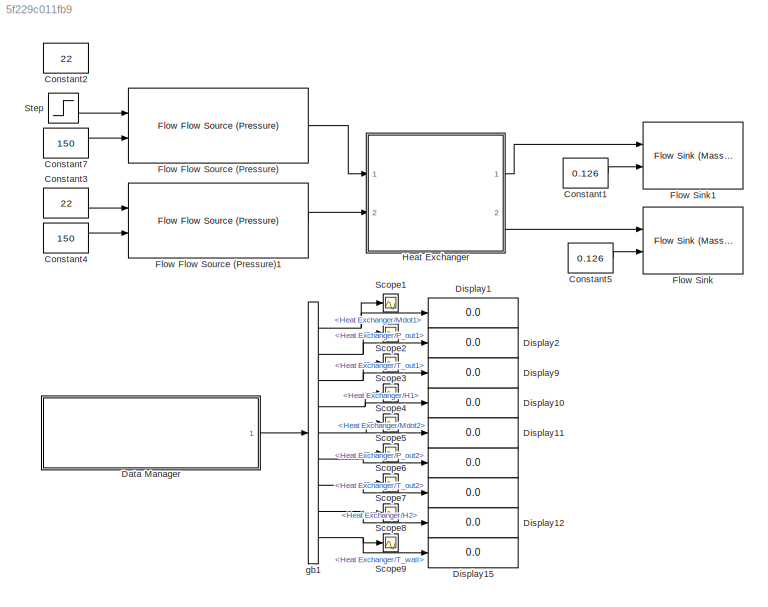
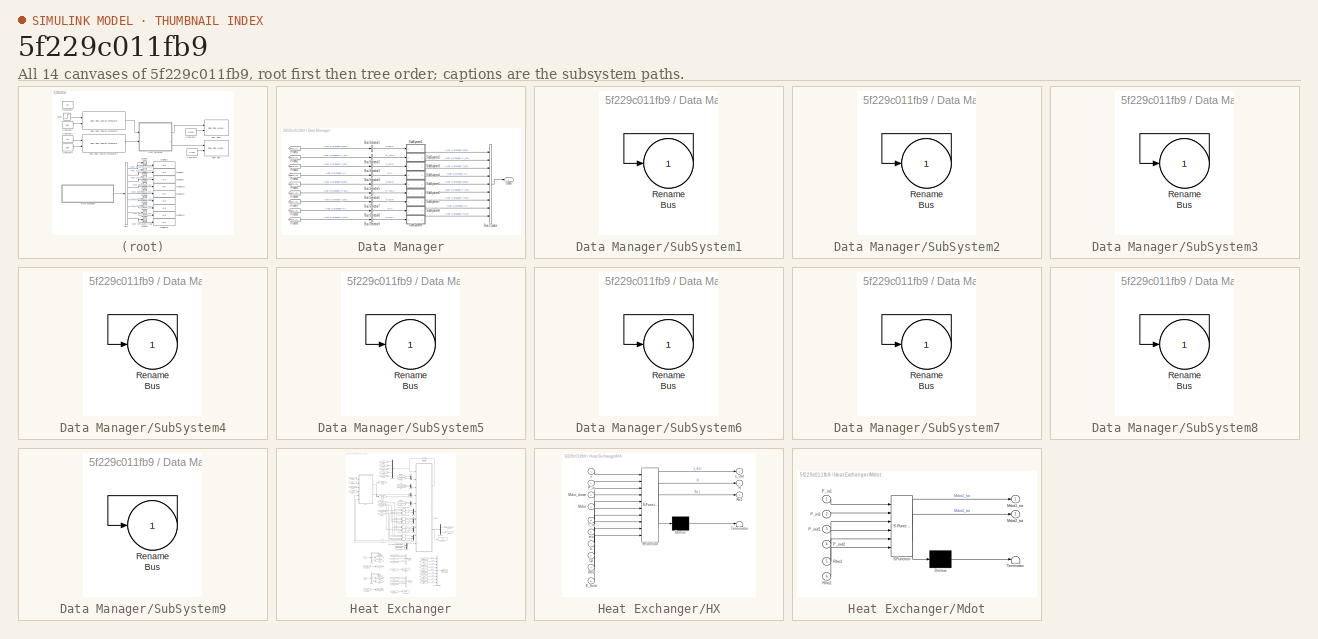
[diagram: thumbnail index - all 14 canvases of the model, root first then tree order]
MODEL slx_5f229c011fb9
KIND model
BLOCK [Display]   
  Decimation = 1
  Ports = [1]
BLOCK [Display]    
  Decimation = 1
  Ports = [1]
BLOCK [Constant] Constant1
  Value = 0.126
BLOCK [Constant] Constant2
  Value = 22
BLOCK [Constant] Constant3
  Value = 22
BLOCK [Constant] Constant4
  Value = 150
BLOCK [Constant] Constant5
  Value = 0.126
BLOCK [Constant] Constant7
  Value = 150
BLOCK [SubSystem] Data Manager
  AncestorBlock = DAEMOT_Lib/Support Functions/Data Manager
  OpenFcn = data_manager
  Ports = [0, 1]
  RequestExecContextInheritance = off
  UserDataPersistent = on
BLOCK [BusCreator] Data Manager/Bus Creator
  DisplayOption = bar
  Inputs = 9
  Ports = [9, 1]
BLOCK [BusSelector] Data Manager/Bus Selector1
  OutputSignals = Mdot1
  Ports = [1, 1]
BLOCK [BusSelector] Data Manager/Bus Selector2
  OutputSignals = P_out1
  Ports = [1, 1]
BLOCK [BusSelector] Data Manager/Bus Selector3
  OutputSignals = T_out1
  Ports = [1, 1]
BLOCK [BusSelector] Data Manager/Bus Selector4
  OutputSignals = H1
  Ports = [1, 1]
BLOCK [BusSelector] Data Manager/Bus Selector5
  OutputSignals = Mdot2
  Ports = [1, 1]
BLOCK [BusSelector] Data Manager/Bus Selector6
  OutputSignals = P_out2
  Ports = [1, 1]
BLOCK [BusSelector] Data Manager/Bus Selector7
  OutputSignals = T_out2
  Ports = [1, 1]
BLOCK [BusSelector] Data Manager/Bus Selector8
  OutputSignals = H2
  Ports = [1, 1]
BLOCK [BusSelector] Data Manager/Bus Selector9
  OutputSignals = T_wall
  Ports = [1, 1]
BLOCK [Outport] Data Manager/Data
  IconDisplay = Port number
BLOCK [From] Data Manager/From1
  GotoTag = gdata_L2L_HX_testHeatExchangerdata_sink1
  TagVisibility = global
  UserDataPersistent = on
BLOCK [From] Data Manager/From2
  GotoTag = gdata_L2L_HX_testHeatExchangerdata_sink1
  TagVisibility = global
  UserDataPersistent = on
BLOCK [From] Data Manager/From3
  GotoTag = gdata_L2L_HX_testHeatExchangerdata_sink1
  TagVisibility = global
  UserDataPersistent = on
BLOCK [From] Data Manager/From4
  GotoTag = gdata_L2L_HX_testHeatExchangerdata_sink1
  TagVisibility = global
  UserDataPersistent = on
BLOCK [From] Data Manager/From5
  GotoTag = gdata_L2L_HX_testHeatExchangerdata_sink1
  TagVisibility = global
  UserDataPersistent = on
BLOCK [From] Data Manager/From6
  GotoTag = gdata_L2L_HX_testHeatExchangerdata_sink1
  TagVisibility = global
  UserDataPersistent = on
BLOCK [From] Data Manager/From7
  GotoTag = gdata_L2L_HX_testHeatExchangerdata_sink1
  TagVisibility = global
  UserDataPersistent = on
BLOCK [From] Data Manager/From8
  GotoTag = gdata_L2L_HX_testHeatExchangerdata_sink1
  TagVisibility = global
  UserDataPersistent = on
BLOCK [From] Data Manager/From9
  GotoTag = gdata_L2L_HX_testHeatExchangerdata_sink1
  TagVisibility = global
  UserDataPersistent = on
BLOCK [SubSystem] Data Manager/SubSystem1
  Ports = [1, 1]
  RequestExecContextInheritance = off
BLOCK [Outport] Data Manager/SubSystem1/Bus
  IconDisplay = Port number
BLOCK [Inport] Data Manager/SubSystem1/Rename
  IconDisplay = Port number
BLOCK [SubSystem] Data Manager/SubSystem2
  Ports = [1, 1]
  RequestExecContextInheritance = off
BLOCK [Outport] Data Manager/SubSystem2/Bus
  IconDisplay = Port number
BLOCK [Inport] Data Manager/SubSystem2/Rename
  IconDisplay = Port number
BLOCK [SubSystem] Data Manager/SubSystem3
  Ports = [1, 1]
  RequestExecContextInheritance = off
BLOCK [Outport] Data Manager/SubSystem3/Bus
  IconDisplay = Port number
BLOCK [Inport] Data Manager/SubSystem3/Rename
  IconDisplay = Port number
BLOCK [SubSystem] Data Manager/SubSystem4
  Ports = [1, 1]
  RequestExecContextInheritance = off
BLOCK [Outport] Data Manager/SubSystem4/Bus
  IconDisplay = Port number
BLOCK [Inport] Data Manager/SubSystem4/Rename
  IconDisplay = Port number
BLOCK [SubSystem] Data Manager/SubSystem5
  Ports = [1, 1]
  RequestExecContextInheritance = off
BLOCK [Outport] Data Manager/SubSystem5/Bus
  IconDisplay = Port number
BLOCK [Inport] Data Manager/SubSystem5/Rename
  IconDisplay = Port number
BLOCK [SubSystem] Data Manager/SubSystem6
  Ports = [1, 1]
  RequestExecContextInheritance = off
BLOCK [Outport] Data Manager/SubSystem6/Bus
  IconDisplay = Port number
BLOCK [Inport] Data Manager/SubSystem6/Rename
  IconDisplay = Port number
BLOCK [SubSystem] Data Manager/SubSystem7
  Ports = [1, 1]
  RequestExecContextInheritance = off
BLOCK [Outport] Data Manager/SubSystem7/Bus
  IconDisplay = Port number
BLOCK [Inport] Data Manager/SubSystem7/Rename
  IconDisplay = Port number
BLOCK [SubSystem] Data Manager/SubSystem8
  Ports = [1, 1]
  RequestExecContextInheritance = off
BLOCK [Outport] Data Manager/SubSystem8/Bus
  IconDisplay = Port number
BLOCK [Inport] Data Manager/SubSystem8/Rename
  IconDisplay = Port number
BLOCK [SubSystem] Data Manager/SubSystem9
  Ports = [1, 1]
  RequestExecContextInheritance = off
BLOCK [Outport] Data Manager/SubSystem9/Bus
  IconDisplay = Port number
BLOCK [Inport] Data Manager/SubSystem9/Rename
  IconDisplay = Port number
BLOCK [Display] Display1
  Decimation = 1
  Ports = [1]
BLOCK [Display] Display10
  Decimation = 1
  Ports = [1]
BLOCK [Display] Display11
  Decimation = 1
  Ports = [1]
BLOCK [Display] Display12
  Decimation = 1
  Ports = [1]
BLOCK [Display] Display15
  Decimation = 1
  Ports = [1]
BLOCK [Display] Display2
  Decimation = 1
  Ports = [1]
BLOCK [Display] Display9
  Decimation = 1
  Ports = [1]
BLOCK [Reference] Flow Flow Source (Pressure)  REF=DAEMOT_Lib/Components/Flow Flow Source (Pressure)
  M = 0
  M_ext = on
  P = 0
  P_ext = on
  Ports = [2, 1]
  SourceBlock = DAEMOT_Lib/Components/Flow Flow Source (Pressure)
  SourceType = Flow Source (Pressure)
  T = 0
  T_ext = on
BLOCK [Reference] Flow Flow Source (Pressure)1  REF=DAEMOT_Lib/Components/Flow Flow Source (Pressure)
  M = 0
  M_ext = on
  P = 0
  P_ext = on
  Ports = [2, 1]
  SourceBlock = DAEMOT_Lib/Components/Flow Flow Source (Pressure)
  SourceType = Flow Source (Pressure)
  T = 0
  T_ext = on
BLOCK [Reference] Flow Sink  REF=DAEMOT_Lib/Components/Flow Sink (Mass Flow Rate)
  M = 0
  M_ext = on
  P = 0
  P_ext = on
  Ports = [2]
  SourceBlock = DAEMOT_Lib/Components/Flow Sink (Mass Flow Rate)
  SourceType = Flow Sink (Mass Flow Rate)
  T = 0
  T_ext = on
BLOCK [Reference] Flow Sink1  REF=DAEMOT_Lib/Components/Flow Sink (Mass Flow Rate)
  M = 0
  M_ext = on
  P = 0
  P_ext = on
  Ports = [2]
  SourceBlock = DAEMOT_Lib/Components/Flow Sink (Mass Flow Rate)
  SourceType = Flow Sink (Mass Flow Rate)
  T = 0
  T_ext = on
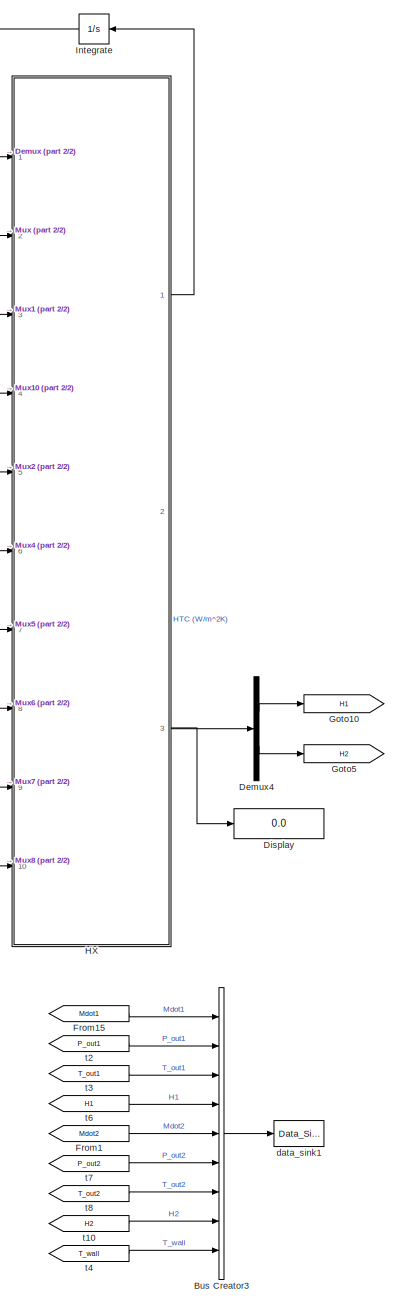
[diagram: Heat Exchanger - part 1/2, right side, full height]
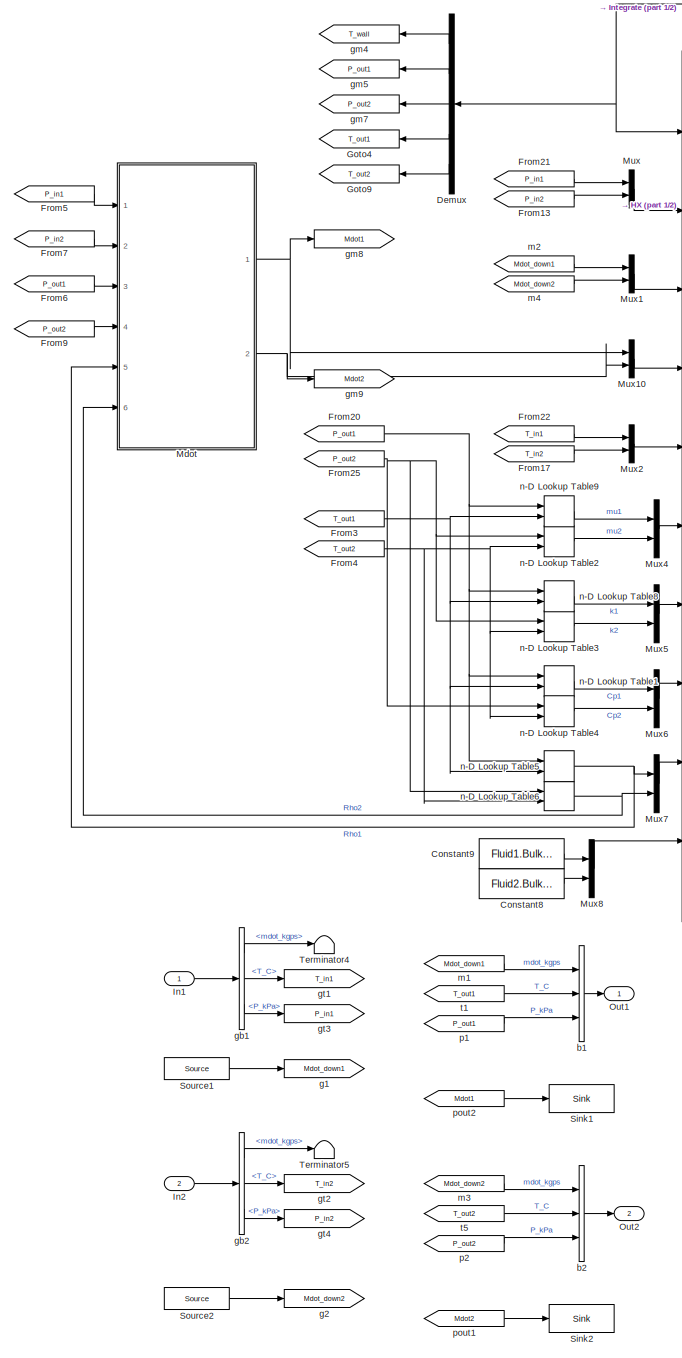
[diagram: Heat Exchanger - part 2/2, left side, full height]
BLOCK [SubSystem] Heat Exchanger
  AncestorBlock = DAEMOT_Lib/Components/Heat Exchanger
  OpenFcn = load('Fluids.mat');\nSet_Fluid_Popup_Names( Fluid )
  Ports = [2, 2]
  RequestExecContextInheritance = off
BLOCK [BusCreator] Heat Exchanger/Bus Creator3
  DisplayOption = bar
  Inputs = 9
  Ports = [9, 1]
BLOCK [Constant] Heat Exchanger/Constant8
  Value = Fluid2.Bulk_Mod
BLOCK [Constant] Heat Exchanger/Constant9
  Value = Fluid1.Bulk_Mod
BLOCK [Demux] Heat Exchanger/Demux
  DisplayOption = bar
  Outputs = 5
  Ports = [1, 5]
BLOCK [Demux] Heat Exchanger/Demux4
  DisplayOption = bar
  Outputs = 2
  Ports = [1, 2]
BLOCK [Display] Heat Exchanger/Display
  Decimation = 1
  Ports = [1]
BLOCK [From] Heat Exchanger/From1
  CloseFcn = tagdialog Close
  GotoTag = Mdot2
BLOCK [From] Heat Exchanger/From13
  CloseFcn = tagdialog Close
  GotoTag = P_in2
BLOCK [From] Heat Exchanger/From15
  CloseFcn = tagdialog Close
  GotoTag = Mdot1
BLOCK [From] Heat Exchanger/From17
  CloseFcn = tagdialog Close
  GotoTag = T_in2
BLOCK [From] Heat Exchanger/From20
  CloseFcn = tagdialog Close
  GotoTag = P_out1
BLOCK [From] Heat Exchanger/From21
  CloseFcn = tagdialog Close
  GotoTag = P_in1
BLOCK [From] Heat Exchanger/From22
  CloseFcn = tagdialog Close
  GotoTag = T_in1
BLOCK [From] Heat Exchanger/From25
  CloseFcn = tagdialog Close
  GotoTag = P_out2
BLOCK [From] Heat Exchanger/From3
  CloseFcn = tagdialog Close
  GotoTag = T_out1
BLOCK [From] Heat Exchanger/From4
  CloseFcn = tagdialog Close
  GotoTag = T_out2
BLOCK [From] Heat Exchanger/From5
  CloseFcn = tagdialog Close
  GotoTag = P_in1
BLOCK [From] Heat Exchanger/From6
  CloseFcn = tagdialog Close
  GotoTag = P_out1
BLOCK [From] Heat Exchanger/From7
  CloseFcn = tagdialog Close
  GotoTag = P_in2
BLOCK [From] Heat Exchanger/From9
  CloseFcn = tagdialog Close
  GotoTag = P_out2
BLOCK [Goto] Heat Exchanger/Goto10
  GotoTag = H1
BLOCK [Goto] Heat Exchanger/Goto4
  GotoTag = T_out1
BLOCK [Goto] Heat Exchanger/Goto5
  GotoTag = H2
BLOCK [Goto] Heat Exchanger/Goto9
  GotoTag = T_out2
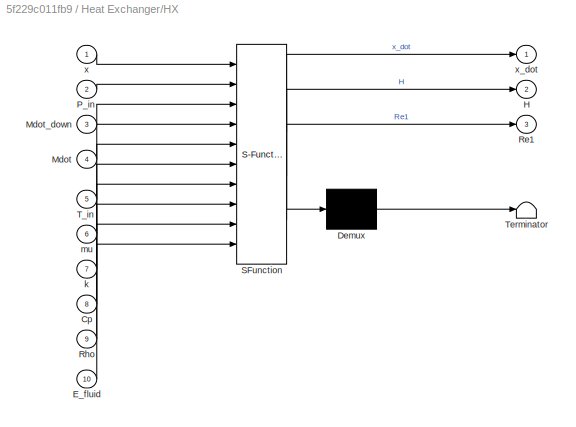
BLOCK [SubSystem] Heat Exchanger/HX
  ErrorFcn = Stateflow.Translate.translate
  PermitHierarchicalResolution = ExplicitOnly
  Ports = [10, 3]
  RequestExecContextInheritance = off
  SFBlockType = MATLAB Function
  TreatAsAtomicUnit = on
BLOCK [Demux] Heat Exchanger/HX/ Demux 
  Outputs = 1
  Ports = [1, 1]
BLOCK [S-Function] Heat Exchanger/HX/ SFunction 
  EnableBusSupport = on
  FunctionName = sf_sfun
  Parameters = Cp_wall,KL1,KL2,L1,L2,M_wall,Nu_lam1,Nu_lam2,Pass1,Pass2,W1,W2,b1,b2,f1,f2
  PortCounts = [10 4]
  Ports = [10, 4]
  Tag = Stateflow S-Function L2L_HX_test 3
BLOCK [Terminator] Heat Exchanger/HX/ Terminator 
BLOCK [Inport] Heat Exchanger/HX/Cp
  IconDisplay = Port number
  Port = 8
BLOCK [Inport] Heat Exchanger/HX/E_fluid
  IconDisplay = Port number
  Port = 10
BLOCK [Outport] Heat Exchanger/HX/H
  IconDisplay = Port number
  Port = 2
BLOCK [Inport] Heat Exchanger/HX/Mdot
  IconDisplay = Port number
  Port = 4
BLOCK [Inport] Heat Exchanger/HX/Mdot_down
  IconDisplay = Port number
  Port = 3
BLOCK [Inport] Heat Exchanger/HX/P_in
  IconDisplay = Port number
  Port = 2
BLOCK [Outport] Heat Exchanger/HX/Re1
  IconDisplay = Port number
  Port = 3
BLOCK [Inport] Heat Exchanger/HX/Rho
  IconDisplay = Port number
  Port = 9
BLOCK [Inport] Heat Exchanger/HX/T_in
  IconDisplay = Port number
  Port = 5
BLOCK [Inport] Heat Exchanger/HX/k
  IconDisplay = Port number
  Port = 7
BLOCK [Inport] Heat Exchanger/HX/mu
  IconDisplay = Port number
  Port = 6
BLOCK [Inport] Heat Exchanger/HX/x
  IconDisplay = Port number
BLOCK [Outport] Heat Exchanger/HX/x_dot
  IconDisplay = Port number
BLOCK [Inport] Heat Exchanger/In1
  IconDisplay = Port number
BLOCK [Inport] Heat Exchanger/In2
  IconDisplay = Port number
  Port = 2
BLOCK [Integrator] Heat Exchanger/Integrate
  InitialCondition = [Tw_init P1_init P2_init T1_init T2_init]
  Ports = [1, 1]
BLOCK [SubSystem] Heat Exchanger/Mdot
  ErrorFcn = Stateflow.Translate.translate
  PermitHierarchicalResolution = ExplicitOnly
  Ports = [6, 2]
  RequestExecContextInheritance = off
  SFBlockType = MATLAB Function
  TreatAsAtomicUnit = on
BLOCK [Demux] Heat Exchanger/Mdot/ Demux 
  Outputs = 1
  Ports = [1, 1]
BLOCK [S-Function] Heat Exchanger/Mdot/ SFunction 
  EnableBusSupport = on
  FunctionName = sf_sfun
  Parameters = KL1,KL2,L1,L2,Pass1,Pass2,W1,W2,b1,b2,f1,f2
  PortCounts = [6 3]
  Ports = [6, 3]
  Tag = Stateflow S-Function L2L_HX_test 13
BLOCK [Terminator] Heat Exchanger/Mdot/ Terminator 
BLOCK [Outport] Heat Exchanger/Mdot/Mdot1_tot
  IconDisplay = Port number
BLOCK [Outport] Heat Exchanger/Mdot/Mdot2_tot
  IconDisplay = Port number
  Port = 2
BLOCK [Inport] Heat Exchanger/Mdot/P_in1
  IconDisplay = Port number
BLOCK [Inport] Heat Exchanger/Mdot/P_in2
  IconDisplay = Port number
  Port = 2
BLOCK [Inport] Heat Exchanger/Mdot/P_out1
  IconDisplay = Port number
  Port = 3
BLOCK [Inport] Heat Exchanger/Mdot/P_out2
  IconDisplay = Port number
  Port = 4
BLOCK [Inport] Heat Exchanger/Mdot/Rho1
  IconDisplay = Port number
  Port = 5
BLOCK [Inport] Heat Exchanger/Mdot/Rho2
  IconDisplay = Port number
  Port = 6
BLOCK [Mux] Heat Exchanger/Mux
  DisplayOption = bar
  Inputs = 2
  Ports = [2, 1]
BLOCK [Mux] Heat Exchanger/Mux1
  DisplayOption = bar
  Inputs = 2
  Ports = [2, 1]
BLOCK [Mux] Heat Exchanger/Mux10
  DisplayOption = bar
  Inputs = 2
  Ports = [2, 1]
BLOCK [Mux] Heat Exchanger/Mux2
  DisplayOption = bar
  Inputs = 2
  Ports = [2, 1]
BLOCK [Mux] Heat Exchanger/Mux4
  DisplayOption = bar
  Inputs = 2
  Ports = [2, 1]
BLOCK [Mux] Heat Exchanger/Mux5
  DisplayOption = bar
  Inputs = 2
  Ports = [2, 1]
BLOCK [Mux] Heat Exchanger/Mux6
  DisplayOption = bar
  Inputs = 2
  Ports = [2, 1]
BLOCK [Mux] Heat Exchanger/Mux7
  DisplayOption = bar
  Inputs = 2
  Ports = [2, 1]
BLOCK [Mux] Heat Exchanger/Mux8
  DisplayOption = bar
  Inputs = 2
  Ports = [2, 1]
BLOCK [Outport] Heat Exchanger/Out1
  IconDisplay = Port number
BLOCK [Outport] Heat Exchanger/Out2
  IconDisplay = Port number
  Port = 2
BLOCK [Reference] Heat Exchanger/Sink1  REF=DAEMOT_Lib/Support Functions/Sink
  Ports = [1]
  SourceBlock = DAEMOT_Lib/Support Functions/Sink
  SourceType = Sink
BLOCK [Reference] Heat Exchanger/Sink2  REF=DAEMOT_Lib/Support Functions/Sink
  Ports = [1]
  SourceBlock = DAEMOT_Lib/Support Functions/Sink
  SourceType = Sink
BLOCK [Reference] Heat Exchanger/Source1  REF=DAEMOT_Lib/Support Functions/Source
  Ports = [0, 1]
  SourceBlock = DAEMOT_Lib/Support Functions/Source
  SourceType = Source
BLOCK [Reference] Heat Exchanger/Source2  REF=DAEMOT_Lib/Support Functions/Source
  Ports = [0, 1]
  SourceBlock = DAEMOT_Lib/Support Functions/Source
  SourceType = Source
BLOCK [Terminator] Heat Exchanger/Terminator4
BLOCK [Terminator] Heat Exchanger/Terminator5
BLOCK [BusCreator] Heat Exchanger/b1
  DisplayOption = bar
  Inputs = 3
  Ports = [3, 1]
BLOCK [BusCreator] Heat Exchanger/b2
  DisplayOption = bar
  Inputs = 3
  Ports = [3, 1]
BLOCK [Reference] Heat Exchanger/data_sink1  REF=DAEMOT_Lib/Support Functions/Data_Sink
  Ports = [1]
  SourceBlock = DAEMOT_Lib/Support Functions/Data_Sink
  SourceType = Data Sink
BLOCK [Goto] Heat Exchanger/g1
  GotoTag = Mdot_down1
BLOCK [Goto] Heat Exchanger/g2
  GotoTag = Mdot_down2
BLOCK [BusSelector] Heat Exchanger/gb1
  OutputSignals = mdot_kgps,T_C,P_kPa
  Ports = [1, 3]
BLOCK [BusSelector] Heat Exchanger/gb2
  OutputSignals = mdot_kgps,T_C,P_kPa
  Ports = [1, 3]
BLOCK [Goto] Heat Exchanger/gm4
  GotoTag = T_wall
BLOCK [Goto] Heat Exchanger/gm5
  GotoTag = P_out1
BLOCK [Goto] Heat Exchanger/gm7
  GotoTag = P_out2
BLOCK [Goto] Heat Exchanger/gm8
  GotoTag = Mdot1
BLOCK [Goto] Heat Exchanger/gm9
  GotoTag = Mdot2
BLOCK [Goto] Heat Exchanger/gt1
  GotoTag = T_in1
BLOCK [Goto] Heat Exchanger/gt2
  GotoTag = T_in2
BLOCK [Goto] Heat Exchanger/gt3
  GotoTag = P_in1
BLOCK [Goto] Heat Exchanger/gt4
  GotoTag = P_in2
BLOCK [From] Heat Exchanger/m1
  CloseFcn = tagdialog Close
  GotoTag = Mdot_down1
BLOCK [From] Heat Exchanger/m2
  CloseFcn = tagdialog Close
  GotoTag = Mdot_down1
BLOCK [From] Heat Exchanger/m3
  CloseFcn = tagdialog Close
  GotoTag = Mdot_down2
BLOCK [From] Heat Exchanger/m4
  CloseFcn = tagdialog Close
  GotoTag = Mdot_down2
BLOCK [Lookup_n-D] Heat Exchanger/n-D Lookup Table1
  BreakpointsForDimension1 = Fluid1.P
  BreakpointsForDimension2 = Fluid1.T
  BreakpointsForDimension3 = [5, 7]
  ExtrapMethod = Clip
  Ports = [2, 1]
  RndMeth = Simplest
  Table = Fluid1.C_pt
BLOCK [Lookup_n-D] Heat Exchanger/n-D Lookup Table2
  BreakpointsForDimension1 = Fluid2.P
  BreakpointsForDimension2 = Fluid2.T
  BreakpointsForDimension3 = [5, 7]
  ExtrapMethod = Clip
  Ports = [2, 1]
  RndMeth = Simplest
  Table = Fluid2.Mu_pt
  UseLastTableValue = on
BLOCK [Lookup_n-D] Heat Exchanger/n-D Lookup Table3
  BreakpointsForDimension1 = Fluid2.P
  BreakpointsForDimension2 = Fluid2.T
  BreakpointsForDimension3 = [5, 7]
  ExtrapMethod = Clip
  Ports = [2, 1]
  RndMeth = Simplest
  Table = Fluid2.K_pt
  UseLastTableValue = on
BLOCK [Lookup_n-D] Heat Exchanger/n-D Lookup Table4
  BreakpointsForDimension1 = Fluid2.P
  BreakpointsForDimension2 = Fluid2.T
  BreakpointsForDimension3 = [5, 7]
  ExtrapMethod = Clip
  Ports = [2, 1]
  RndMeth = Simplest
  Table = Fluid2.C_pt
  UseLastTableValue = on
BLOCK [Lookup_n-D] Heat Exchanger/n-D Lookup Table5
  BreakpointsForDimension1 = Fluid1.P
  BreakpointsForDimension2 = Fluid1.T
  BreakpointsForDimension3 = [5, 7]
  ExtrapMethod = Clip
  Ports = [2, 1]
  RndMeth = Simplest
  Table = Fluid1.Rho_pt
  UseLastTableValue = on
BLOCK [Lookup_n-D] Heat Exchanger/n-D Lookup Table6
  BreakpointsForDimension1 = Fluid2.P
  BreakpointsForDimension2 = Fluid2.T
  BreakpointsForDimension3 = [5, 7]
  ExtrapMethod = Clip
  Ports = [2, 1]
  RndMeth = Simplest
  Table = Fluid2.Rho_pt
  UseLastTableValue = on
BLOCK [Lookup_n-D] Heat Exchanger/n-D Lookup Table8
  BreakpointsForDimension1 = Fluid1.P
  BreakpointsForDimension2 = Fluid1.T
  BreakpointsForDimension3 = [5, 7]
  ExtrapMethod = Clip
  Ports = [2, 1]
  RndMeth = Simplest
  Table = Fluid1.K_pt
  UseLastTableValue = on
BLOCK [Lookup_n-D] Heat Exchanger/n-D Lookup Table9
  BreakpointsForDimension1 = Fluid1.P
  BreakpointsForDimension2 = Fluid1.T
  BreakpointsForDimension3 = [5, 7]
  ExtrapMethod = Clip
  Ports = [2, 1]
  RndMeth = Simplest
  Table = Fluid1.Mu_pt
  UseLastTableValue = on
BLOCK [From] Heat Exchanger/p1
  CloseFcn = tagdialog Close
  GotoTag = P_out1
BLOCK [From] Heat Exchanger/p2
  CloseFcn = tagdialog Close
  GotoTag = P_out2
BLOCK [From] Heat Exchanger/pout1
  GotoTag = Mdot2
BLOCK [From] Heat Exchanger/pout2
  GotoTag = Mdot1
BLOCK [From] Heat Exchanger/t1
  CloseFcn = tagdialog Close
  GotoTag = T_out1
BLOCK [From] Heat Exchanger/t10
  CloseFcn = tagdialog Close
  GotoTag = H2
BLOCK [From] Heat Exchanger/t2
  CloseFcn = tagdialog Close
  GotoTag = P_out1
BLOCK [From] Heat Exchanger/t3
  CloseFcn = tagdialog Close
  GotoTag = T_out1
BLOCK [From] Heat Exchanger/t4
  CloseFcn = tagdialog Close
  GotoTag = T_wall
BLOCK [From] Heat Exchanger/t5
  CloseFcn = tagdialog Close
  GotoTag = T_out2
BLOCK [From] Heat Exchanger/t6
  CloseFcn = tagdialog Close
  GotoTag = H1
BLOCK [From] Heat Exchanger/t7
  CloseFcn = tagdialog Close
  GotoTag = P_out2
BLOCK [From] Heat Exchanger/t8
  CloseFcn = tagdialog Close
  GotoTag = T_out2
BLOCK [Scope] Scope1
  Floating = off
  LimitDataPoints = off
  NumInputPorts = 1
  Ports = [1]
  ShowLegends = off
BLOCK [Scope] Scope2
  Floating = off
  LimitDataPoints = off
  NumInputPorts = 1
  Ports = [1]
  SaveName = ScopeData1
  ShowLegends = off
  ZoomMode = yonly
BLOCK [Scope] Scope3
  Floating = off
  LimitDataPoints = off
  NumInputPorts = 1
  Ports = [1]
  SaveName = ScopeData2
  ShowLegends = off
BLOCK [Scope] Scope4
  Floating = off
  LimitDataPoints = off
  NumInputPorts = 1
  Ports = [1]
  SaveName = ScopeData3
  ShowLegends = off
BLOCK [Scope] Scope5
  Floating = off
  LimitDataPoints = off
  NumInputPorts = 1
  Ports = [1]
  SaveName = ScopeData4
  ShowLegends = off
BLOCK [Scope] Scope6
  Floating = off
  LimitDataPoints = off
  NumInputPorts = 1
  Ports = [1]
  SaveName = ScopeData5
  ShowLegends = off
BLOCK [Scope] Scope7
  Floating = off
  LimitDataPoints = off
  NumInputPorts = 1
  Ports = [1]
  SaveName = ScopeData6
  ShowLegends = off
BLOCK [Scope] Scope8
  Floating = off
  LimitDataPoints = off
  NumInputPorts = 1
  Ports = [1]
  SaveName = ScopeData7
  ShowLegends = off
BLOCK [Scope] Scope9
  Floating = off
  LimitDataPoints = off
  NumInputPorts = 1
  Ports = [1]
  SaveName = ScopeData8
  ShowLegends = off
BLOCK [Step] Step
  After = 50
  Before = 22
  SampleTime = 0
  Time = 20
BLOCK [BusSelector] gb1
  OutputSignals = Heat Exchanger/Mdot1,Heat Exchanger/P_out1,Heat Exchanger/T_out1,Heat Exchanger/H1,Heat Exchanger/Mdot2,Heat Exchanger/P_out2,Heat Exchanger/T_out2,Heat Exchanger/H2,Heat Exchanger/T_wall
  Ports = [1, 9]
LINE Constant1:1 -> Flow Sink1:2
LINE Constant3:1 -> Flow Flow Source (Pressure)1:1
LINE Constant4:1 -> Flow Flow Source (Pressure)1:2
LINE Constant5:1 -> Flow Sink:2
LINE Constant7:1 -> Flow Flow Source (Pressure):2
LINE Data Manager:1 -> gb1:1
LINE Flow Flow Source (Pressure)1:1 -> Heat Exchanger:2
LINE Flow Flow Source (Pressure):1 -> Heat Exchanger:1
LINE Heat Exchanger:1 -> Flow Sink1:1
LINE Heat Exchanger:2 -> Flow Sink:1
LINE Step:1 -> Flow Flow Source (Pressure):1
NET gb1:1 -> Display1:1, Scope1:1
NET gb1:2 -> Display2:1, Scope2:1
NET gb1:3 -> Display9:1, Scope3:1
NET gb1:4 -> Display10:1, Scope4:1
NET gb1:5 -> Display11:1, Scope5:1
NET gb1:6 ->   :1, Scope6:1
NET gb1:7 ->    :1, Scope7:1
NET gb1:8 -> Display12:1, Scope8:1
NET gb1:9 -> Display15:1, Scope9:1
note: NET lines group one-source signal fan-out (src -> all destinations, sorted); 1:1 wires keep LINE
CHART Heat Exchanger/HX states=1 transitions=1
  STATE_LABEL 'eML_blk_kernel()'
  STATE_LABEL 'SCRIPT:\nfunction [x_dot,H,Re1]  = HX(x,P_in,Mdot_down,Mdot,T_in,mu,k,Cp,Rho,E_fluid,M_wall,Cp_wall,Pass1,Pass2,f1,f2,KL1,KL2,b1,b2,W1,W2,L1,L2,Nu_lam1,Nu_lam2)\n\n% Parse data\nP_in1       = P_in(1);\nP_in2       = P_in(2);\nMdot_down1  = Mdot_down(1);\nMdot_down2  = Mdot_down(2);\nMdot1       = Mdot(1);\nMdot2       = Mdot(2);\nT_in1       = T_in(1);\nT_in2       = T_in(2);\nmu1         = mu(1);\nmu2        ...<+3323ch>'
CHART Heat Exchanger/Mdot states=1 transitions=1
  STATE_LABEL 'eML_blk_kernel()'
  STATE_LABEL 'SCRIPT:\nfunction [Mdot1_tot,Mdot2_tot]   = Mdot(P_in1,P_in2,P_out1,P_out2,Rho1,Rho2,f1,f2,b1,b2,W1,W2,L1,L2,KL1,KL2,Pass1,Pass2)\n\n% Constants and Conversions\nD1 = 4*b1*W1/(2*b1+2*W1);           % (see Incropera, Eq. 8.66)\nD2 = 4*b2*W2/(2*b2+2*W2);           % (see Incropera, Eq. 8.66)\ndP1         = (P_in1-P_out1)*1000;  % Pressure differential (side 1) [Pa]\ndP2         = (P_in2-P_out2)*1000;  % Pr...<+557ch>'
